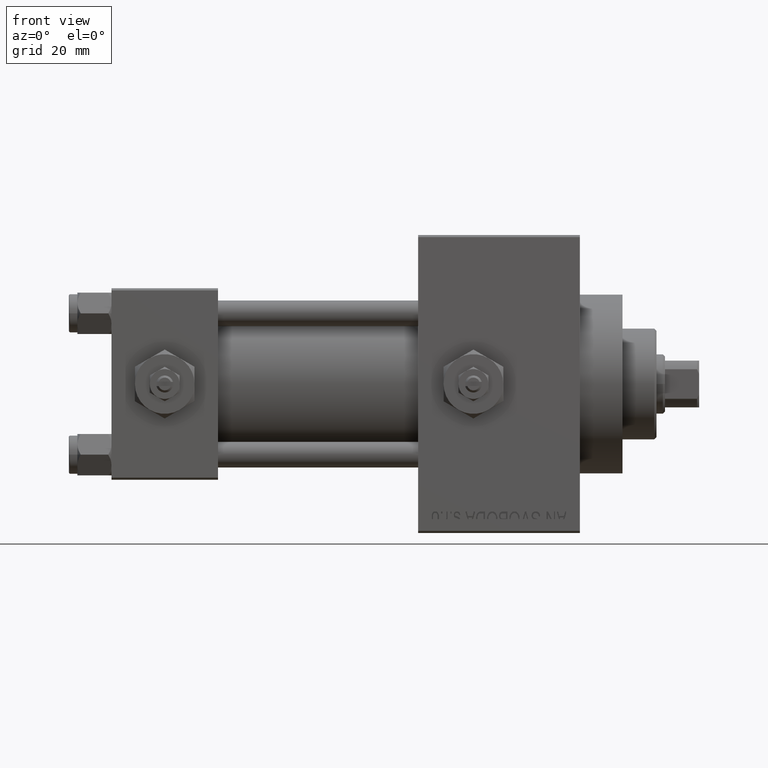
[diagram: clean part render]
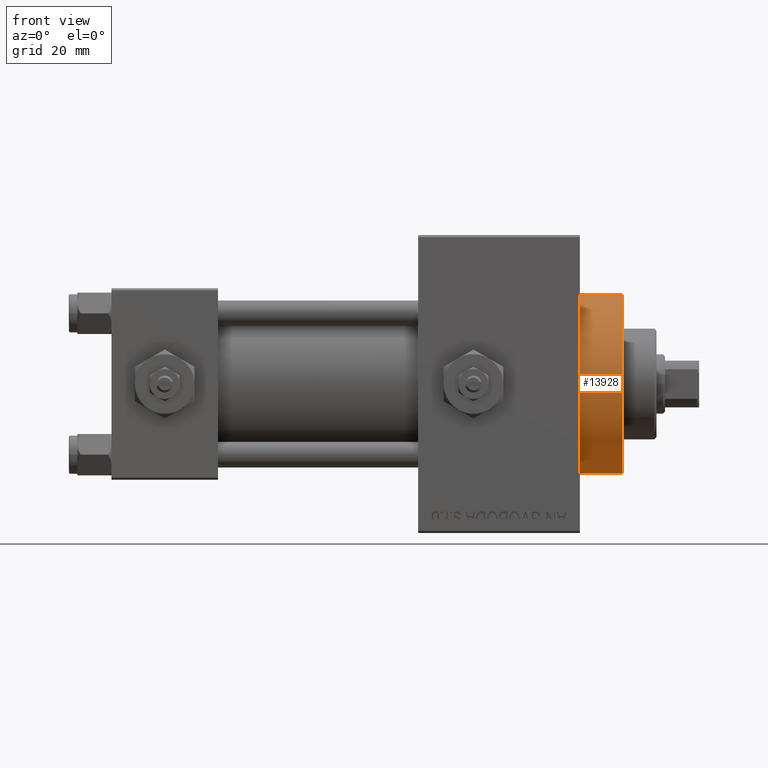
[diagram: same view with one face highlighted and labeled with its STEP entity id]
A machine part, front view. The second image highlights one B-rep face of the part: STEP entity #13928.
In plain terms, the highlighted cylindrical surface (partial cylindrical patch) has radius 21 mm, axis along (-1, -0, -0).
Its self-contained STEP definition (entity closure, byte-faithful):
#1488 = EDGE_LOOP ( 'NONE', ( #1741, #37748, #35654, #16764 ) ) ;
#1741 = ORIENTED_EDGE ( 'NONE', *, *, #7614, .F. ) ;
#2346 = EDGE_CURVE ( 'NONE', #26507, #35974, #37182, .T. ) ;
#2591 = CIRCLE ( 'NONE', #20775, 21.00000000000000000 ) ;
#2617 = LINE ( 'NONE', #36117, #37573 ) ;
#2994 = DIRECTION ( 'NONE',  ( -1.000000000000000000, -0.000000000000000000, -0.000000000000000000 ) ) ;
#3242 = CARTESIAN_POINT ( 'NONE',  ( 120.0000000000000142, 0.000000000000000000, 0.000000000000000000 ) ) ;
#3485 = DIRECTION ( 'NONE',  ( 0.000000000000000000, 0.000000000000000000, 1.000000000000000000 ) ) ;
#6315 = VECTOR ( 'NONE', #34800, 1000.000000000000000 ) ;
#7507 = CARTESIAN_POINT ( 'NONE',  ( 110.0000000000000142, 0.000000000000000000, 0.000000000000000000 ) ) ;
#7614 = EDGE_CURVE ( 'NONE', #20966, #35974, #30808, .T. ) ;
#8003 = CARTESIAN_POINT ( 'NONE',  ( 120.0000000000000142, 2.571758278209441661E-15, -21.00000000000000000 ) ) ;
#9284 = CARTESIAN_POINT ( 'NONE',  ( 120.0000000000000142, 2.571758278209441661E-15, -21.00000000000000000 ) ) ;
#10181 = CARTESIAN_POINT ( 'NONE',  ( 110.0000000000000142, 2.571758278209441661E-15, -21.00000000000000000 ) ) ;
#12077 = AXIS2_PLACEMENT_3D ( 'NONE', #3242, #2994, #3485 ) ;
#13928 = ADVANCED_FACE ( 'NONE', ( #22580 ), #33503, .T. ) ;
#14204 = AXIS2_PLACEMENT_3D ( 'NONE', #7507, #48963, #18911 ) ;
#16764 = ORIENTED_EDGE ( 'NONE', *, *, #2346, .T. ) ;
#16972 = EDGE_CURVE ( 'NONE', #18731, #26507, #2617, .T. ) ;
#18731 = VERTEX_POINT ( 'NONE', #27837 ) ;
#18911 = DIRECTION ( 'NONE',  ( 0.000000000000000000, 0.000000000000000000, -1.000000000000000000 ) ) ;
#20775 = AXIS2_PLACEMENT_3D ( 'NONE', #22829, #43643, #28233 ) ;
#20966 = VERTEX_POINT ( 'NONE', #9284 ) ;
#22580 = FACE_OUTER_BOUND ( 'NONE', #1488, .T. ) ;
#22829 = CARTESIAN_POINT ( 'NONE',  ( 120.0000000000000142, 0.000000000000000000, 0.000000000000000000 ) ) ;
#26507 = VERTEX_POINT ( 'NONE', #40645 ) ;
#27837 = CARTESIAN_POINT ( 'NONE',  ( 120.0000000000000142, 0.000000000000000000, 21.00000000000000000 ) ) ;
#28233 = DIRECTION ( 'NONE',  ( 0.000000000000000000, 0.000000000000000000, -1.000000000000000000 ) ) ;
#30808 = LINE ( 'NONE', #8003, #6315 ) ;
#31063 = EDGE_CURVE ( 'NONE', #18731, #20966, #2591, .T. ) ;
#33503 = CYLINDRICAL_SURFACE ( 'NONE', #12077, 21.00000000000000000 ) ;
#34800 = DIRECTION ( 'NONE',  ( -1.000000000000000000, -0.000000000000000000, -0.000000000000000000 ) ) ;
#35654 = ORIENTED_EDGE ( 'NONE', *, *, #16972, .T. ) ;
#35974 = VERTEX_POINT ( 'NONE', #10181 ) ;
#36117 = CARTESIAN_POINT ( 'NONE',  ( 120.0000000000000142, 0.000000000000000000, 21.00000000000000000 ) ) ;
#37182 = CIRCLE ( 'NONE', #14204, 21.00000000000000000 ) ;
#37573 = VECTOR ( 'NONE', #40334, 1000.000000000000000 ) ;
#37748 = ORIENTED_EDGE ( 'NONE', *, *, #31063, .F. ) ;
#40334 = DIRECTION ( 'NONE',  ( -1.000000000000000000, -0.000000000000000000, -0.000000000000000000 ) ) ;
#40645 = CARTESIAN_POINT ( 'NONE',  ( 110.0000000000000142, 0.000000000000000000, 21.00000000000000000 ) ) ;
#43643 = DIRECTION ( 'NONE',  ( 1.000000000000000000, 0.000000000000000000, 0.000000000000000000 ) ) ;
#48963 = DIRECTION ( 'NONE',  ( 1.000000000000000000, 0.000000000000000000, 0.000000000000000000 ) ) ;